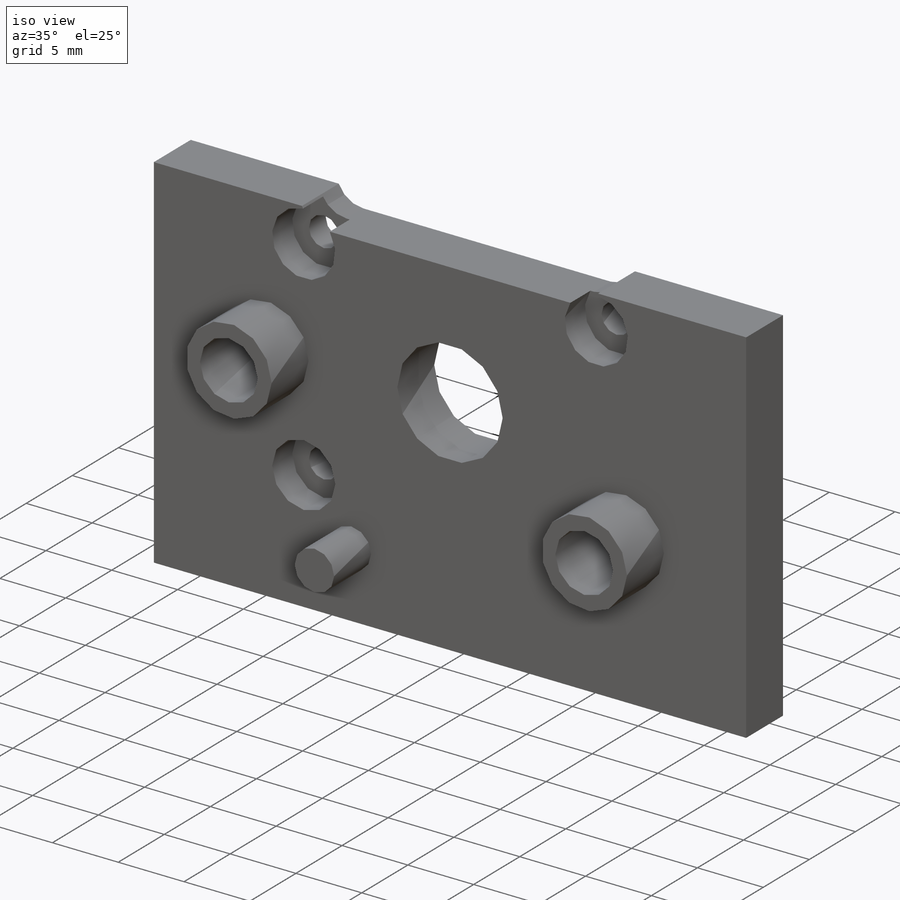
[diagram: iso view]
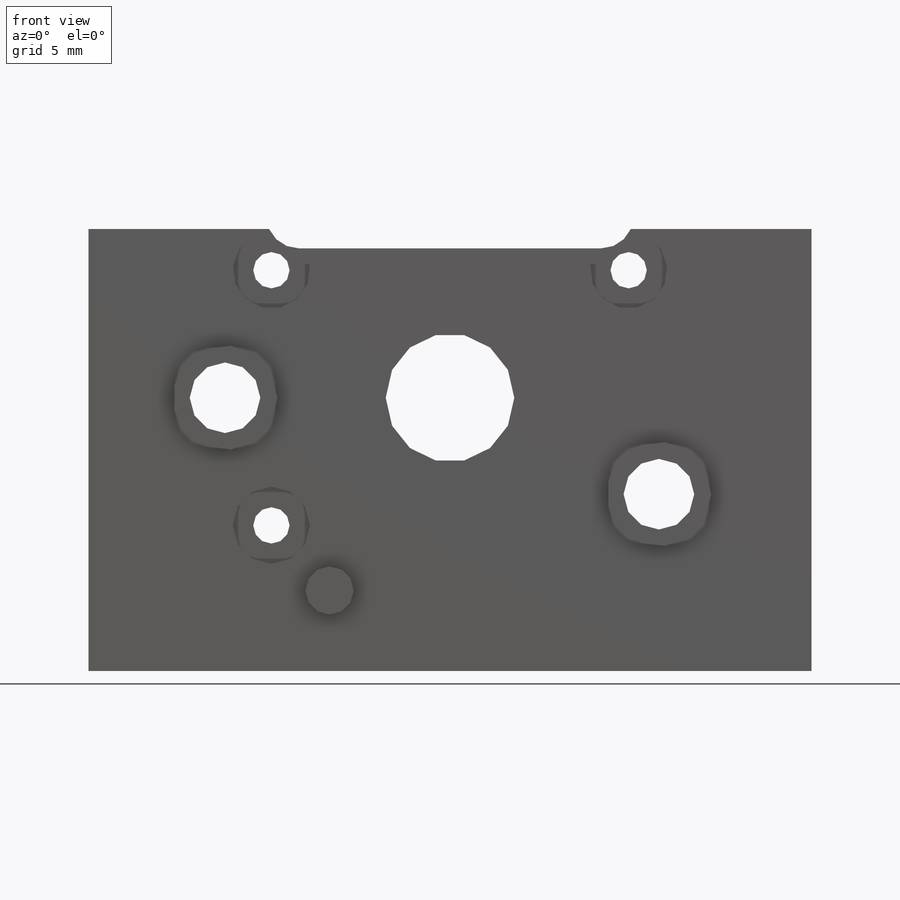
[diagram: front view]
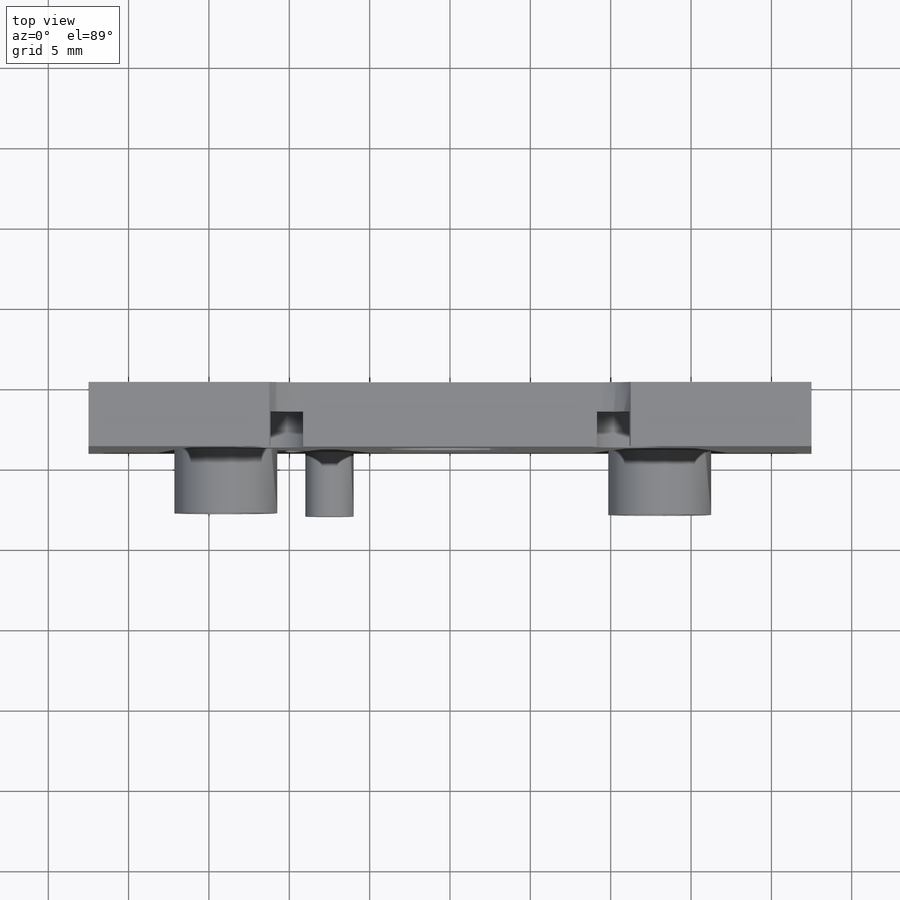
[diagram: top view]
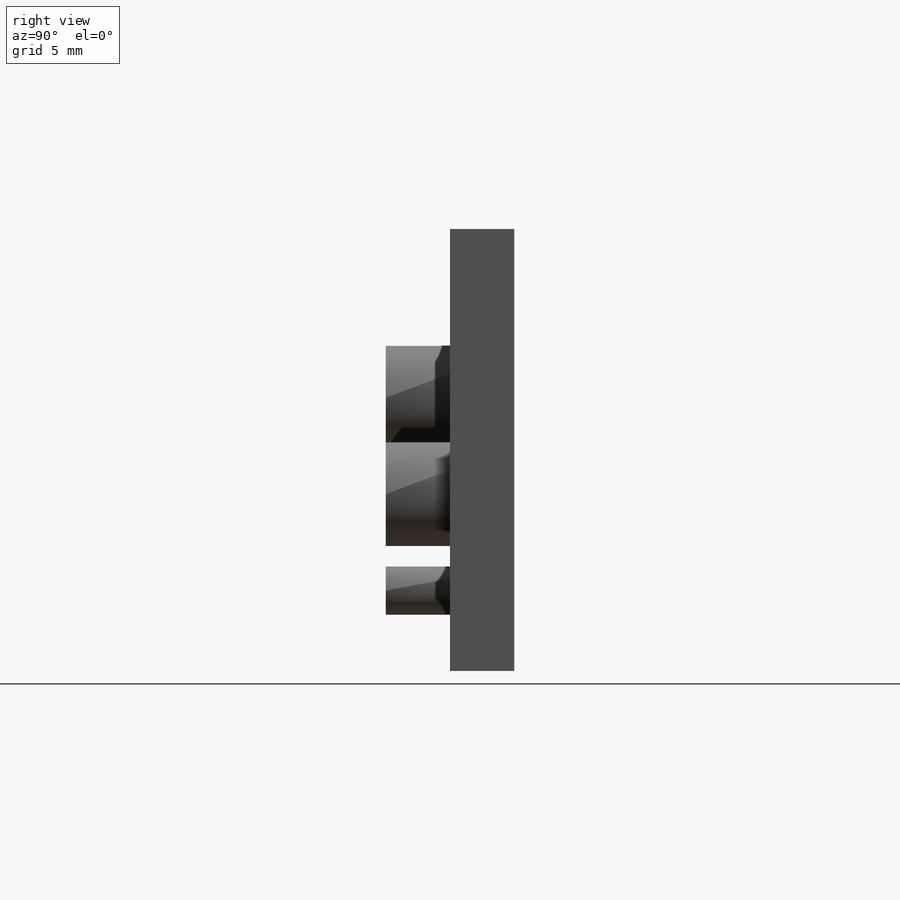
[diagram: right view]
SOLIDWORKS PART (.sldprt)
format: sldprt  version: not decoded by parser v0  size: 288,256 bytes
history: native  units: mm
features: sketch x11, plane x3, revolve x3, hole x3, material x1, extrude x1, cut_extrude x1 (+11 scaffold rows collapsed)
feature tree (34):
  scaffold x11  (default folders/planes/origin — collapsed)
  material  "6061-T6 Al"
  plane  "Plane1"  Offset=4mm
  sketch  "Sketch1"
  extrude  "Boss-Extrude1"  Depth=4mm
  sketch  "Sketch2"
  cut_extrude  "Cut-Extrude1"  Depth=4mm
  plane  "Plane2"  Offset=6mm
  sketch  "Sketch3"
  revolve  "Revolve1"  Angle=360deg
  plane  "Plane3"  Offset=12mm
  sketch  "Sketch4"
  revolve  "Revolve2"  Angle=360deg
  sketch  "Sketch5"
  revolve  "Revolve3"  Angle=360deg
  hole  "Ø8.0 (8) Diameter Hole1"  Diameter=8mm Depth=8mm
  sketch  "Sketch7"
  sketch  "Sketch6"  dims[hole-wizard template sketch: 60 standard entries collapsed; hole parameters kept: c18.Thru Hole Depth=8.0mm]
  hole  "CBORE for M2 Hex Head Machine Screw1"  Diameter=2.26mm Depth=4mm
  sketch  "Sketch11"
  sketch  "Sketch10"  dims[hole-wizard template sketch: 41 standard entries collapsed; hole parameters kept: c12.Thru Hole Dia.=2.26mm c12.Thru Hole Depth=4.0mm c12.C'Bore Dia.=4.8mm c12.C'Bore Depth=2.18mm]
  hole  "Tapped Hole for #8-32 Helicoil1"  Diameter=4.3942mm Depth=13.335mm
  sketch  "Sketch13"
  sketch  "Sketch12"  dims[hole-wizard template sketch: 46 standard entries collapsed; hole parameters kept: c15.Tap Drill Dia.=4.3942mm c15.Tap Drill Depth=13.335mm c15.D3=~14.816244mm c15.Drill Angle=118.0deg]
decode coverage: 11 of 19 modeling features carry decoded parameters
note: ~ marks probable driven/reference dimensions
note: suppression state not decoded; provenance and decode notes live in map.json
